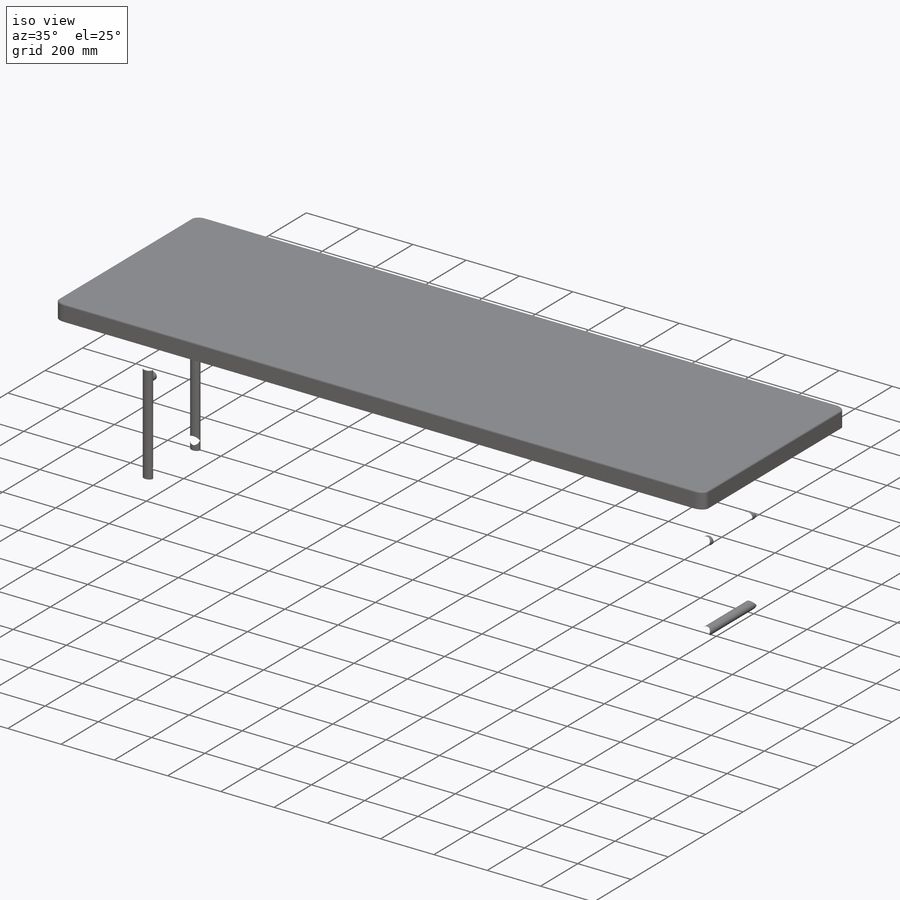
[diagram: iso view]
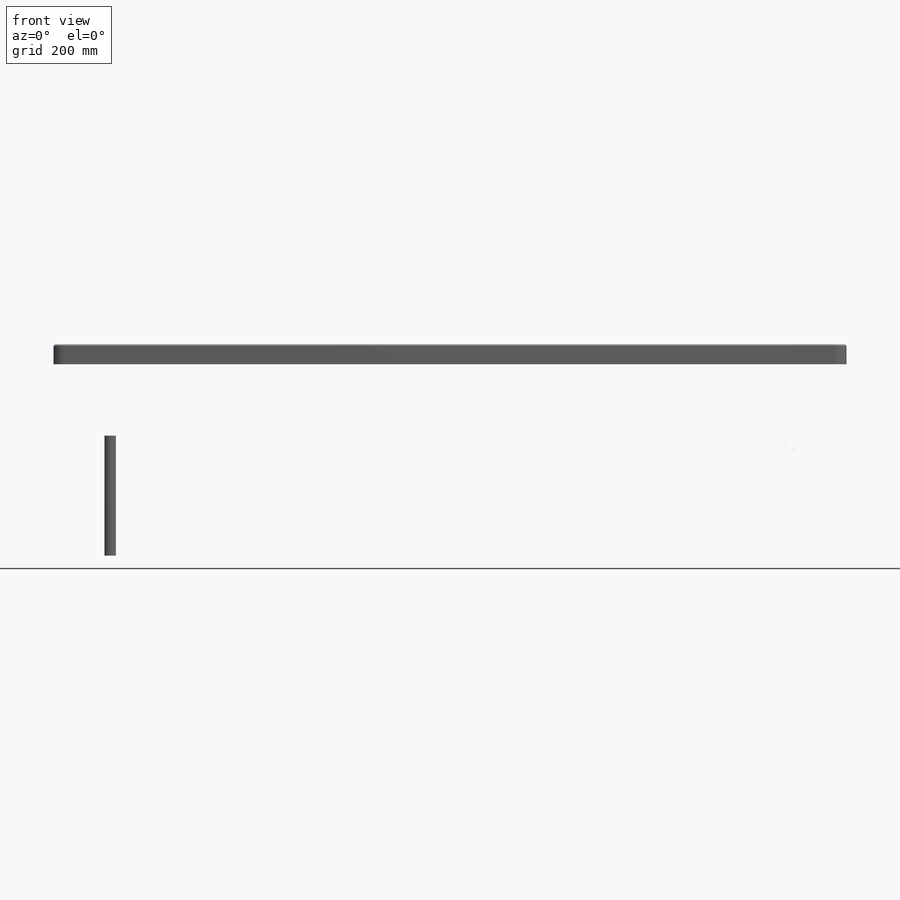
[diagram: front view]
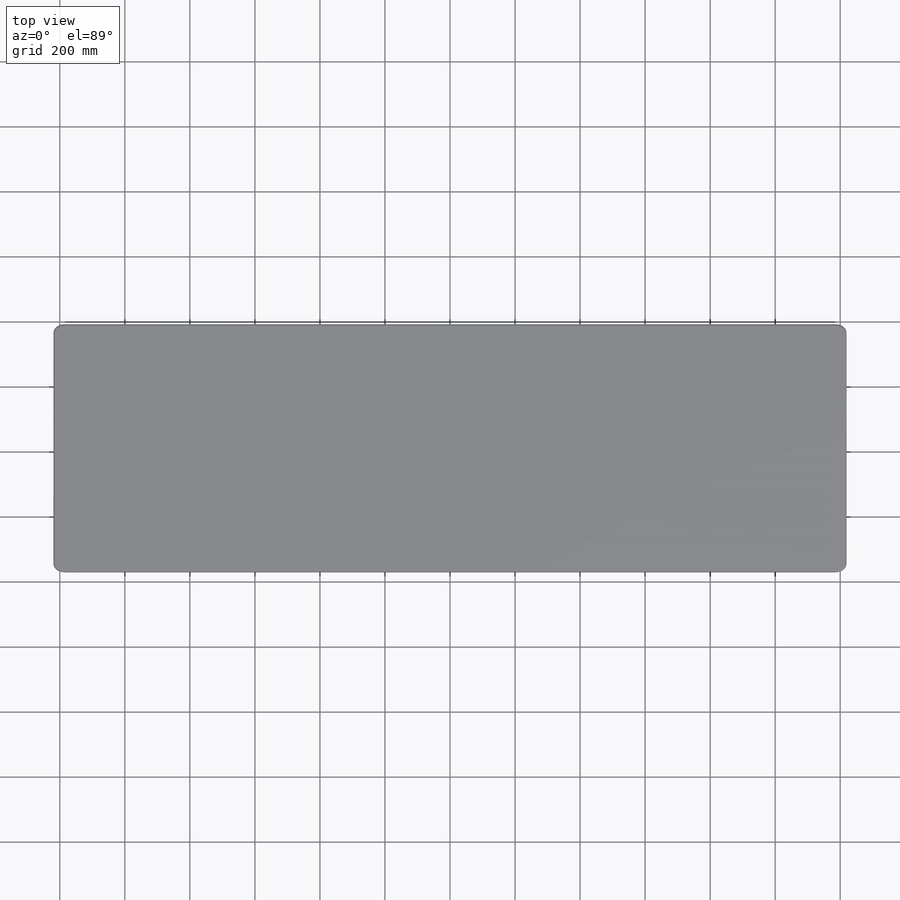
[diagram: top view]
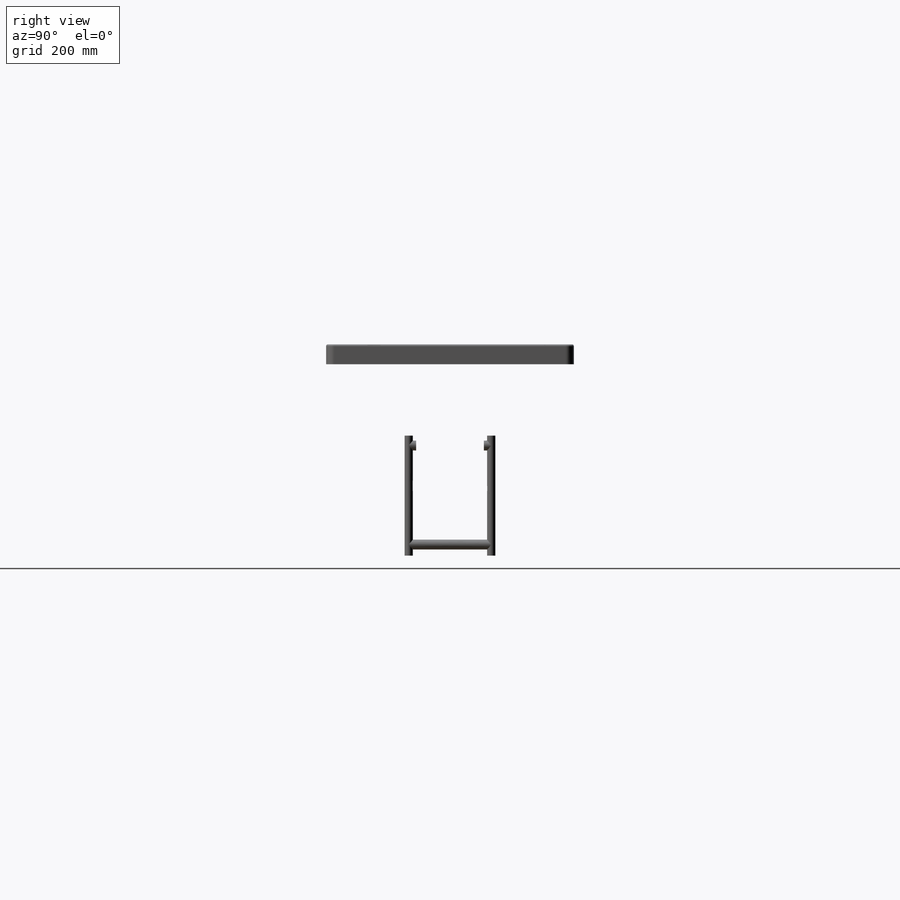
[diagram: right view]
SOLIDWORKS PART (.sldprt)
format: sldprt  version: not decoded by parser v0  size: 2,003,456 bytes
history: native  units: mm
features: sketch x7, extrude x4, fillet x3, plane x3, mirror x3, material x1, shell x1, sweep x1, revolve x1 + 1 further entry (+11 scaffold rows collapsed)
feature tree (36):
  scaffold x11  (default folders/planes/origin — collapsed)
  material  "Material <not specified>"
  "Annotations"  RD1=2438.4mm RD2=762mm
  sketch  "Sketch1"  dims[D3=2.54mm D1=76.2mm D2=177.8mm]
  extrude  "Boss-Extrude1"  Depth=5.08mm
  fillet  "Fillet2"  Radius=0.508mm
  shell  "Shell1"  Thickness=1.27mm
  sketch  "Sketch2"  dims[D1=44.45mm D2=44.45mm D3=0.635mm D4=0.635mm D5=0.635mm D6=0.635mm D7=0.635mm D8=0.635mm D9=0.635mm]
  extrude  "Boss-Extrude3"  Depth=2.54mm
  fillet  "Fillet3"  Radius=0.254mm
  fillet  "Fillet4"  Radius=0.254mm
  plane  "Plane1"  Offset=76.2mm
  plane  "Plane2"  Offset=76.2mm
  sketch  "Sketch3"  dims[c1.D3=12.7mm c1.D10=12.7mm c1.D4=3.81mm c1.D5=1.27mm c1.D1=5.715mm c1.D2=5.715mm c2.D4=12.7mm c2.D5=12.7mm c2.D6=38.1mm c2.D7=38.1mm c2.D8=19.05mm c2.D9=19.05mm c2.D11=~0.276118mm]
  sketch  "Sketch4"  dims[D2=2.54mm D3=12.7mm D1=0.0mm]
  sweep  "Sweep6"
  sketch  "Sketch5"  dims[D1=1.397mm D2=0.254mm]
  revolve  "Revolve1"  Angle=360deg
  mirror  "Mirror1"
  sketch  "Sketch6"  dims[D1=25.4mm D2=2.54mm]
  extrude  "Boss-Extrude4"  Depth=25.4mm
  plane  "Plane3"  Offset=10.16mm
  sketch  "Sketch7"  dims[D1=0.635mm]
  extrude  "Boss-Extrude5"  Depth=0.254mm
  mirror  "Mirror2"
  mirror  "Mirror3"
decode coverage: 16 of 20 modeling features carry decoded parameters; 1 rows unclassified (native names shown)
note: ~ marks probable driven/reference dimensions
note: suppression state not decoded; provenance and decode notes live in map.json
